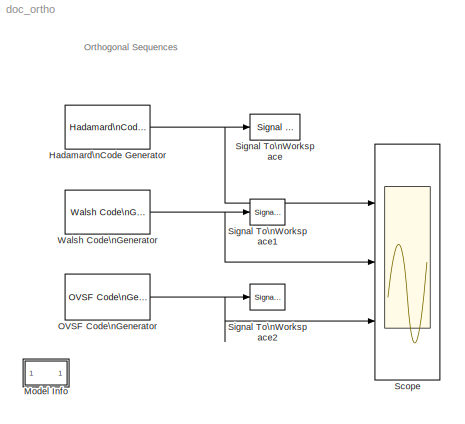
MODEL doc_ortho
KIND model
BLOCK [Reference] Hadamard\nCode Generator  REF=commseqgen2/Hadamard\nCode Generator
  Ports = [0, 1]
  ShowPortLabels = on
  SourceBlock = commseqgen2/Hadamard\nCode Generator
  SourceType = Hadamard Code Generator
  frameBased = off
  index = 31
  length = 64
  sampPerFrame = 1
  ts = 1
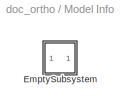
BLOCK [SubSystem] Model Info
  CopyFcn = slcm CopyBlock;
  DeleteFcn = slcm Cancel;
  InitFcn = slcm('UpdateAllCMBlocksInThisModelInit')
  LoadFcn = slcm LoadBlock;
  MaskCallbackString = ||||||||||||||||||||||||||||||
  MaskDescription = This block allows revision control information to be displayed within the model.
  MaskDisplay = text(str2num(LeftAlignmentValue), 0.5, MaskDisplayString, 'HorizontalAlignment', HorizontalTextAlignment)\n
  MaskEnableString = on,on,on,on,on,on,on,on,on,on,on,on,on,on,on,on,on,on,on,on,on,on,on,on,on,on,on,on,on,on,on
  MaskIconFrame = on
  MaskIconOpaque = on
  MaskIconRotate = none
  MaskIconUnits = normalized
  MaskPromptString = InitialSaveTempField|InitialBlockCM|BlockCM|Frame|SaveTempField|DisplayStringWithTags|MaskDisplayString|HorizontalTextAlignment|LeftAlignmentValue|SourceBlockDiagram|TagMaxNumber|CMTag1|CMTag2|CMTag3|CMTag4|CMTag5|CMTag6|CMTag7|CMTag8|CMTag9|CMTag10|CMTag11|CMTag12|CMTag13|CMTag14|CMTag15|CMTag16|CMTag17|CMTag18|CMTag19|CMTag20
  MaskSelfModifiable = on
  MaskStyleString = edit,edit,edit,edit,edit,edit,edit,edit,edit,edit,edit,edit,edit,edit,edit,edit,edit,edit,edit,edit,edit,edit,edit,edit,edit,edit,edit,edit,edit,edit,edit
  MaskToolTipString = on,on,on,on,on,on,on,on,on,on,on,on,on,on,on,on,on,on,on,on,on,on,on,on,on,on,on,on,on,on,on
  MaskTunableValueString = on,on,on,on,on,on,on,on,on,on,on,on,on,on,on,on,on,on,on,on,on,on,on,on,on,on,on,on,on,on,on
  MaskType = CMBlock
  MaskValueString = |None|None|on||Info|Info|Center|0.5|doc_ortho|20||||||||||||||||||||
  MaskVarAliasString = ,,,,,,,,,,,,,,,,,,,,,,,,,,,,,,
  MaskVariables = InitialSaveTempField=&1;InitialBlockCM=&2;BlockCM=&3;Frame=&4;SaveTempField=&5;DisplayStringWithTags=&6;MaskDisplayString=&7;HorizontalTextAlignment=&8;LeftAlignmentValue=&9;SourceBlockDiagram=&10;TagMaxNumber=@11;CMTag1=&12;CMTag2=&13;CMTag3=&14;CMTag4=&15;CMTag5=&16;CMTag6=&17;CMTag7=&18;CMTag8=&19;CMTag9=&20;CMTag10=&21;CMTag11=&22;CMTag12=&23;CMTag13=&24;CMTag14=&25;CMTag15=&26;CMTag16=&27;CMT...<+45ch>
  MaskVisibilityString = off,off,off,off,off,off,off,off,off,off,off,off,off,off,off,off,off,off,off,off,off,off,off,off,off,off,off,off,off,off,off
  NameChangeFcn = slcm Rename;
  OpenFcn = commdemohelp;
  Ports = []
  PostSaveFcn = slcm('UpdateAllCMBlocksInThisModel')
  TreatAsAtomicUnit = off
BLOCK [SubSystem] Model Info/EmptySubsystem
  Ports = []
  TreatAsAtomicUnit = off
BLOCK [Reference] OVSF Code\nGenerator  REF=commseqgen2/OVSF Code\nGenerator
  Ports = [0, 1]
  ShowPortLabels = on
  SourceBlock = commseqgen2/OVSF Code\nGenerator
  SourceType = OVSF Code Generator
  frameBased = off
  index = 31
  sampPerFrame = 1
  spreadFact = 64
  ts = 1
BLOCK [Scope] Scope
  DataFormat = StructureWithTime
  NumInputPorts = 3
  Ports = [3]
  YMax = 1.5~1.5~1.5
  YMin = -1.5~-1.5~-1.5
BLOCK [Reference] Signal To\nWorkspace  REF=dspsnks4/Signal To\nWorkspace
  Decimation = 1
  FrameMode = Concatenate frames (2-D array)
  MaxDataPoints = inf
  Ports = [1]
  ShowPortLabels = on
  SourceBlock = dspsnks4/Signal To\nWorkspace
  SourceType = Signal To Workspace
  VariableName = had
BLOCK [Reference] Signal To\nWorkspace1  REF=dspsnks4/Signal To\nWorkspace
  Decimation = 1
  FrameMode = Concatenate frames (2-D array)
  MaxDataPoints = inf
  Ports = [1]
  ShowPortLabels = on
  SourceBlock = dspsnks4/Signal To\nWorkspace
  SourceType = Signal To Workspace
  VariableName = walsh
BLOCK [Reference] Signal To\nWorkspace2  REF=dspsnks4/Signal To\nWorkspace
  Decimation = 1
  FrameMode = Concatenate frames (2-D array)
  MaxDataPoints = inf
  Ports = [1]
  ShowPortLabels = on
  SourceBlock = dspsnks4/Signal To\nWorkspace
  SourceType = Signal To Workspace
  VariableName = ovsf
BLOCK [Reference] Walsh Code\nGenerator  REF=commseqgen2/Walsh Code\nGenerator
  Ports = [0, 1]
  ShowPortLabels = on
  SourceBlock = commseqgen2/Walsh Code\nGenerator
  SourceType = Walsh Code Generator
  frameBased = off
  index = 31
  length = 64
  sampPerFrame = 1
  ts = 1
ANNOTATION (root): Orthogonal Sequences
NET Hadamard\nCode Generator:1 -> Scope:1, Signal To\nWorkspace:1
NET OVSF Code\nGenerator:1 -> Scope:3, Signal To\nWorkspace2:1
NET Walsh Code\nGenerator:1 -> Scope:2, Signal To\nWorkspace1:1
note: NET lines group one-source signal fan-out (src -> all destinations, sorted); 1:1 wires keep LINE
